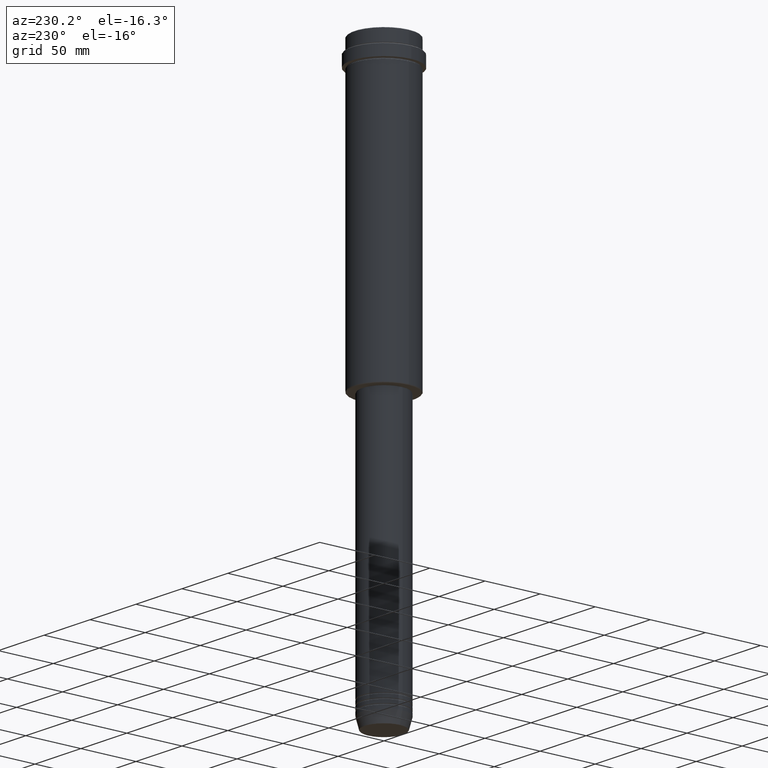
[diagram: clean part render]
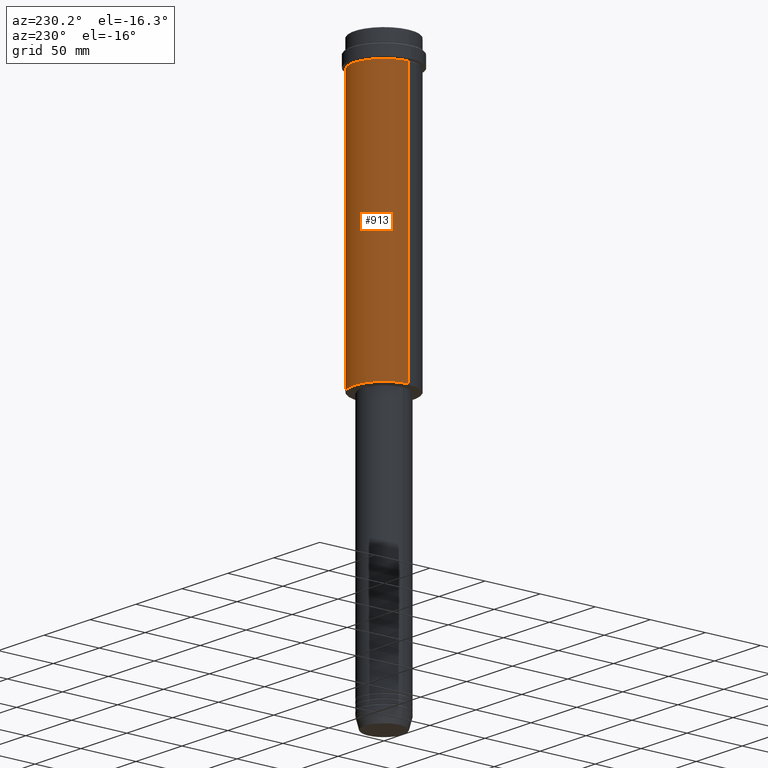
[diagram: same view with one face highlighted and labeled with its STEP entity id]
A machine part, auxiliary view. The second image highlights one B-rep face of the part: STEP entity #913.
In plain terms, the highlighted cylindrical surface (partial cylindrical patch) has radius 27 mm, axis along (-0, -0, 1).
Its self-contained STEP definition (entity closure, byte-faithful):
#24 = EDGE_CURVE ( 'NONE', #69, #412, #115, .T. ) ;
#34 = AXIS2_PLACEMENT_3D ( 'NONE', #979, #1111, #668 ) ;
#69 = VERTEX_POINT ( 'NONE', #692 ) ;
#72 = VERTEX_POINT ( 'NONE', #1332 ) ;
#115 = CIRCLE ( 'NONE', #477, 27.00000000000000355 ) ;
#117 = CARTESIAN_POINT ( 'NONE',  ( 27.00000000000000355, 0.000000000000000000, 0.000000000000000000 ) ) ;
#126 = ORIENTED_EDGE ( 'NONE', *, *, #1243, .T. ) ;
#229 = DIRECTION ( 'NONE',  ( -0.000000000000000000, -0.000000000000000000, 1.000000000000000000 ) ) ;
#336 = DIRECTION ( 'NONE',  ( 1.000000000000000000, 0.000000000000000000, 0.000000000000000000 ) ) ;
#337 = ORIENTED_EDGE ( 'NONE', *, *, #912, .T. ) ;
#342 = DIRECTION ( 'NONE',  ( -0.000000000000000000, -0.000000000000000000, 1.000000000000000000 ) ) ;
#352 = CYLINDRICAL_SURFACE ( 'NONE', #34, 27.00000000000000355 ) ;
#389 = VECTOR ( 'NONE', #444, 1000.000000000000000 ) ;
#394 = VECTOR ( 'NONE', #229, 1000.000000000000000 ) ;
#412 = VERTEX_POINT ( 'NONE', #465 ) ;
#444 = DIRECTION ( 'NONE',  ( -0.000000000000000000, -0.000000000000000000, 1.000000000000000000 ) ) ;
#465 = CARTESIAN_POINT ( 'NONE',  ( -27.00000000000000355, 3.306546357697854128E-15, -23.00000000000001421 ) ) ;
#468 = CARTESIAN_POINT ( 'NONE',  ( -27.00000000000000355, 3.306546357697854128E-15, 0.000000000000000000 ) ) ;
#477 = AXIS2_PLACEMENT_3D ( 'NONE', #541, #342, #336 ) ;
#541 = CARTESIAN_POINT ( 'NONE',  ( 0.000000000000000000, 0.000000000000000000, -23.00000000000001421 ) ) ;
#575 = LINE ( 'NONE', #468, #389 ) ;
#662 = CARTESIAN_POINT ( 'NONE',  ( 0.000000000000000000, 0.000000000000000000, -257.5000000000000568 ) ) ;
#668 = DIRECTION ( 'NONE',  ( 1.000000000000000000, 0.000000000000000000, 0.000000000000000000 ) ) ;
#686 = FACE_OUTER_BOUND ( 'NONE', #1341, .T. ) ;
#692 = CARTESIAN_POINT ( 'NONE',  ( 27.00000000000000355, 0.000000000000000000, -23.00000000000001421 ) ) ;
#788 = CARTESIAN_POINT ( 'NONE',  ( 27.00000000000000355, 0.000000000000000000, -257.5000000000000568 ) ) ;
#864 = ORIENTED_EDGE ( 'NONE', *, *, #1338, .F. ) ;
#897 = DIRECTION ( 'NONE',  ( -0.000000000000000000, -0.000000000000000000, 1.000000000000000000 ) ) ;
#912 = EDGE_CURVE ( 'NONE', #1318, #72, #1227, .T. ) ;
#913 = ADVANCED_FACE ( 'NONE', ( #686 ), #352, .T. ) ;
#979 = CARTESIAN_POINT ( 'NONE',  ( 0.000000000000000000, 0.000000000000000000, 0.000000000000000000 ) ) ;
#1111 = DIRECTION ( 'NONE',  ( -0.000000000000000000, -0.000000000000000000, 1.000000000000000000 ) ) ;
#1220 = LINE ( 'NONE', #117, #394 ) ;
#1221 = DIRECTION ( 'NONE',  ( -1.000000000000000000, 0.000000000000000000, 0.000000000000000000 ) ) ;
#1227 = CIRCLE ( 'NONE', #1352, 27.00000000000000355 ) ;
#1243 = EDGE_CURVE ( 'NONE', #72, #412, #575, .T. ) ;
#1262 = ORIENTED_EDGE ( 'NONE', *, *, #24, .F. ) ;
#1318 = VERTEX_POINT ( 'NONE', #788 ) ;
#1332 = CARTESIAN_POINT ( 'NONE',  ( -27.00000000000000355, 3.306546357697854128E-15, -257.5000000000000568 ) ) ;
#1338 = EDGE_CURVE ( 'NONE', #1318, #69, #1220, .T. ) ;
#1341 = EDGE_LOOP ( 'NONE', ( #337, #126, #1262, #864 ) ) ;
#1352 = AXIS2_PLACEMENT_3D ( 'NONE', #662, #897, #1221 ) ;